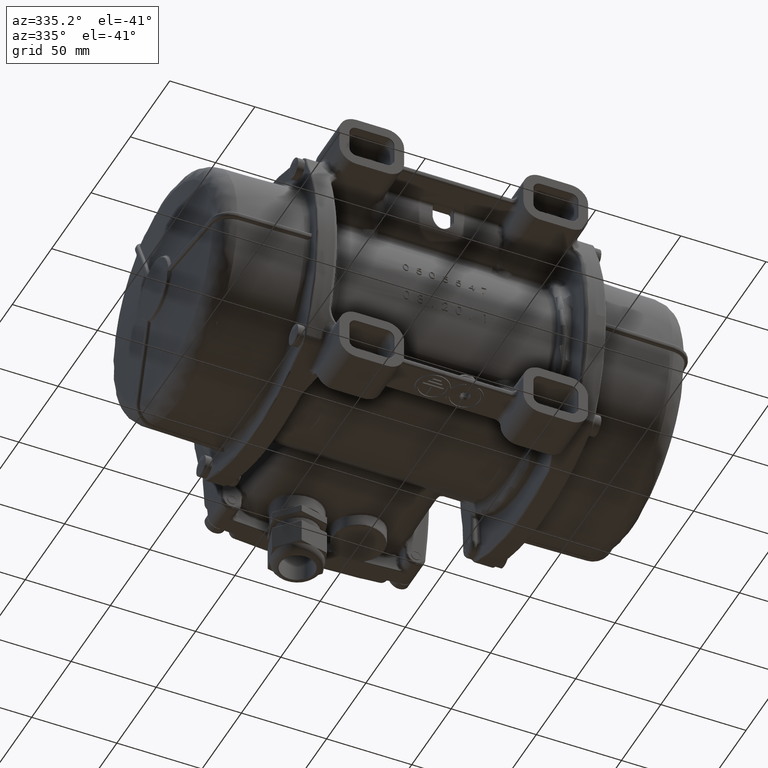
[diagram: clean part render]
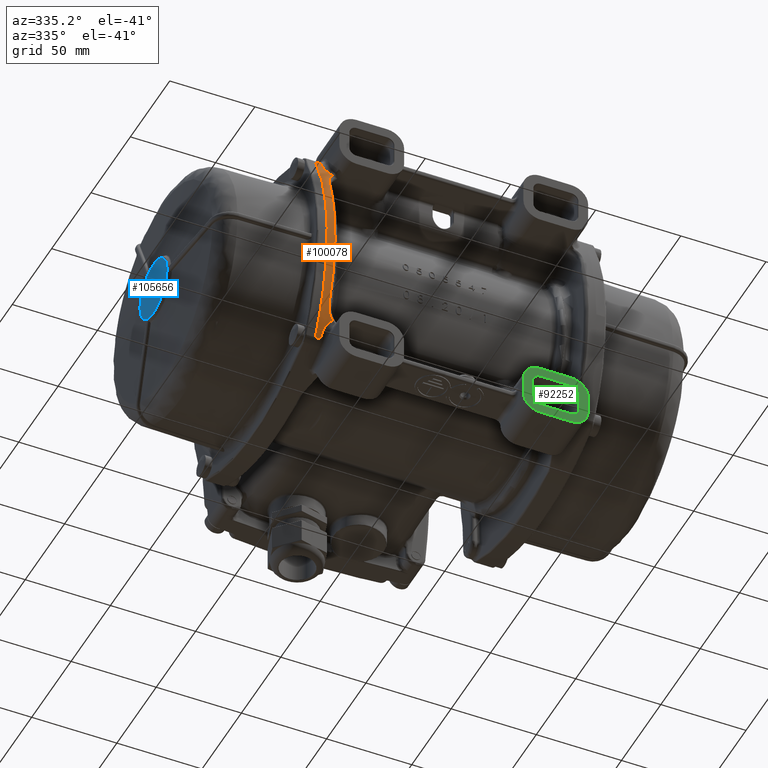
[diagram: same view with three faces highlighted in distinct colors, each labeled with its STEP entity id]
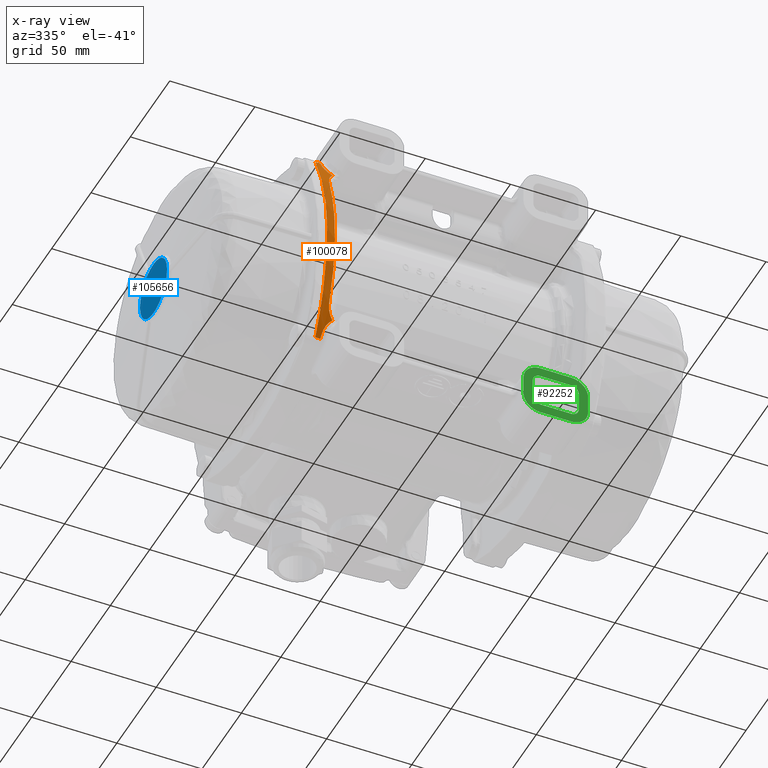
[diagram: x-ray of the same camera — body ghosted, the three highlighted faces saturated]
A machine part, auxiliary view with three faces highlighted in distinct colors.
The next image is the same camera in x-ray (body ghosted, the three faces saturated) — at least one of them is partly hidden behind the body in this view.
Their STEP definitions:

[orange] entity #100078 — the highlighted cylindrical surface (partial cylindrical patch) has radius 134.5 mm, axis along (1, 0, 0).
#2314 = CARTESIAN_POINT ( 'NONE',  ( -72.17867182666100234, -70.31149829890901515, -50.12567197677120134 ) ) ;
#2564 = B_SPLINE_CURVE_WITH_KNOTS ( 'NONE', 3,
 ( #78292, #20665, #68642, #50004 ),
 .UNSPECIFIED., .F., .F.,
 ( 4, 4 ),
 ( 0.000000000000000000, 1.000000000000000000 ),
 .UNSPECIFIED. ) ;
#2949 = CARTESIAN_POINT ( 'NONE',  ( -73.49655878046640112, -71.16040923373830651, -47.96384405093479586 ) ) ;
#5935 = CARTESIAN_POINT ( 'NONE',  ( -78.99999999999997158, -78.40063619702117137, -21.36925875850412737 ) ) ;
#5996 = B_SPLINE_CURVE_WITH_KNOTS ( 'NONE', 3,
 ( #80386, #49574, #22123, #2314, #119578, #29150, #39958, #31684, #61091, #2949, #59835, #117025, #79125, #12539, #68200 ),
 .UNSPECIFIED., .F., .F.,
 ( 4, 2, 1, 2, 2, 2, 2, 4 ),
 ( 0.000000000000000000, 0.1250000000000028033, 0.1875000000000059952, 0.2187500000000069944, 0.2500000000000079936, 0.5000000000000000000, 0.7500000000000000000, 1.000000000000000000 ),
 .UNSPECIFIED. ) ;
#6837 = CARTESIAN_POINT ( 'NONE',  ( -75.50624053571576155, -67.12112145125043128, 57.43576479338757679 ) ) ;
#7306 = VERTEX_POINT ( 'NONE', #84389 ) ;
#7460 = CARTESIAN_POINT ( 'NONE',  ( -73.29611034647282963, -69.03652540899322787, 53.19015234431395101 ) ) ;
#7964 = CARTESIAN_POINT ( 'NONE',  ( -72.04930732508104541, -69.63411141787480574, -51.78433002652697326 ) ) ;
#8077 = DIRECTION ( 'NONE',  ( 0.000000000000000000, 0.000000000000000000, -1.000000000000000000 ) ) ;
#8098 = CARTESIAN_POINT ( 'NONE',  ( -74.75683706517817484, -68.01239493244560208, 55.50844417408804787 ) ) ;
#8302 = EDGE_CURVE ( 'NONE', #10779, #7306, #47090, .T. ) ;
#8322 = ORIENTED_EDGE ( 'NONE', *, *, #123999, .T. ) ;
#9466 = CARTESIAN_POINT ( 'NONE',  ( -74.61744975115340139, -73.05067779831900054, -42.67662579578784943 ) ) ;
#9534 = EDGE_LOOP ( 'NONE', ( #20657, #8322, #48373, #24565, #19636, #115592, #48289, #125083, #28734, #72847 ) ) ;
#9613 = CARTESIAN_POINT ( 'NONE',  ( -76.00000000000000000, -64.90416094536328728, -61.91205138647870143 ) ) ;
#10113 = CARTESIAN_POINT ( 'NONE',  ( -74.54987106253666695, -75.43331197662328691, -35.55552505669981400 ) ) ;
#10779 = VERTEX_POINT ( 'NONE', #90277 ) ;
#11128 = CARTESIAN_POINT ( 'NONE',  ( -72.78582029005180232, -70.66703807928340098, 49.23094878198010349 ) ) ;
#11794 = CIRCLE ( 'NONE', #56607, 134.5000000000000000 ) ;
#12539 = CARTESIAN_POINT ( 'NONE',  ( -74.62484647881730382, -72.78989001891559951, -43.45605558218380082 ) ) ;
#12759 = VERTEX_POINT ( 'NONE', #91966 ) ;
#13019 = CARTESIAN_POINT ( 'NONE',  ( -79.00000000000000000, -77.44233739863480537, -26.65412298113845324 ) ) ;
#13135 = DIRECTION ( 'NONE',  ( -1.000000000000000000, 0.000000000000000000, 0.000000000000000000 ) ) ;
#13162 = CARTESIAN_POINT ( 'NONE',  ( -74.85246074025941709, -67.92055687707600953, -55.71060504948469116 ) ) ;
#13462 = EDGE_CURVE ( 'NONE', #40618, #20833, #103233, .T. ) ;
#14893 = CARTESIAN_POINT ( 'NONE',  ( -79.00000000000000000, -67.37217006240365436, 57.15224826160010707 ) ) ;
#15801 = CARTESIAN_POINT ( 'NONE',  ( -73.62350937175425258, -68.85707483630069703, 53.60650209693106660 ) ) ;
#16927 = CARTESIAN_POINT ( 'NONE',  ( -71.29556615089599347, -69.88378122958580718, -51.17752682049419377 ) ) ;
#19636 = ORIENTED_EDGE ( 'NONE', *, *, #71933, .F. ) ;
#20226 = CARTESIAN_POINT ( 'NONE',  ( -76.00000000000000000, -64.90416094536328728, -61.91205138647870143 ) ) ;
#20657 = ORIENTED_EDGE ( 'NONE', *, *, #96890, .T. ) ;
#20665 = CARTESIAN_POINT ( 'NONE',  ( -77.00000000000000000, -64.90418224541014069, 61.91201030730547217 ) ) ;
#20682 = CARTESIAN_POINT ( 'NONE',  ( -73.08177661221868959, -70.86297670373329538, 48.73035427445259415 ) ) ;
#20833 = VERTEX_POINT ( 'NONE', #79234 ) ;
#22123 = CARTESIAN_POINT ( 'NONE',  ( -71.81919788697639717, -70.12375773846071070, -50.59146025549149783 ) ) ;
#23236 = CARTESIAN_POINT ( 'NONE',  ( -78.99999999999997158, -73.32013352365576964, -42.20460914014253007 ) ) ;
#24565 = ORIENTED_EDGE ( 'NONE', *, *, #8302, .T. ) ;
#24616 = CARTESIAN_POINT ( 'NONE',  ( -76.00000000000000000, -65.42755169117118896, -60.89202743564130316 ) ) ;
#24657 = EDGE_CURVE ( 'NONE', #12759, #100430, #5996, .T. ) ;
#26194 = AXIS2_PLACEMENT_3D ( 'NONE', #52673, #13135, #31024 ) ;
#26647 = CARTESIAN_POINT ( 'NONE',  ( -72.79186749089575414, -69.29450638852092936, 52.58756092090276724 ) ) ;
#28071 = DIRECTION ( 'NONE',  ( -1.000000000000000000, 0.000000000000000000, 0.000000000000000000 ) ) ;
#28734 = ORIENTED_EDGE ( 'NONE', *, *, #50524, .T. ) ;
#29150 = CARTESIAN_POINT ( 'NONE',  ( -72.51875001329301540, -70.50358257312419141, -49.64451164869100808 ) ) ;
#29610 = CARTESIAN_POINT ( 'NONE',  ( -74.61744975115340139, -73.05067779831900054, -42.67662579578784943 ) ) ;
#31024 = DIRECTION ( 'NONE',  ( 0.000000000000000000, 0.000000000000000000, 1.000000000000000000 ) ) ;
#31026 = CARTESIAN_POINT ( 'NONE',  ( -79.00000000000000000, -64.90388532395670040, -61.91175210081130587 ) ) ;
#31684 = CARTESIAN_POINT ( 'NONE',  ( -72.68164344231830398, -70.60176831013190224, -49.39656852749060079 ) ) ;
#32308 = CARTESIAN_POINT ( 'NONE',  ( -76.00000000000000000, -65.42755169117118896, -60.89202743564130316 ) ) ;
#32777 = CARTESIAN_POINT ( 'NONE',  ( -79.00000000000000000, -78.40063619665815509, 21.36925876076201902 ) ) ;
#32832 = CARTESIAN_POINT ( 'NONE',  ( -74.42310318400663505, -79.72552065033630697, -8.782892520093890099 ) ) ;
#33543 = CARTESIAN_POINT ( 'NONE',  ( -74.82854168492721669, -67.94385508002190477, -55.65938144616082894 ) ) ;
#34094 = CARTESIAN_POINT ( 'NONE',  ( -76.00000000000000000, -65.42755169117118896, 60.89202743564140263 ) ) ;
#35539 = CARTESIAN_POINT ( 'NONE',  ( -73.18152678582303849, -69.09768325081466855, 53.04788673405077049 ) ) ;
#36171 = CARTESIAN_POINT ( 'NONE',  ( -75.69133913420125737, -66.77603945858558632, 58.15999464584592715 ) ) ;
#38737 = CARTESIAN_POINT ( 'NONE',  ( -74.44847218301222824, -78.88674057288041297, -17.65055946146678778 ) ) ;
#39370 = CARTESIAN_POINT ( 'NONE',  ( -74.43147721859756416, -79.46063133198266826, 14.05218832830602871 ) ) ;
#39762 = CARTESIAN_POINT ( 'NONE',  ( -73.63847167940410543, -71.29681479809620726, 47.60019211299620423 ) ) ;
#39958 = CARTESIAN_POINT ( 'NONE',  ( -72.62749137239589459, -70.56861326106279364, -49.48045353439350436 ) ) ;
#40022 = CARTESIAN_POINT ( 'NONE',  ( -74.41459027169749163, -80.00186997008398748, 6.946767905977892177 ) ) ;
#40349 = CIRCLE ( 'NONE', #26194, 134.5000000006818084 ) ;
#40546 = CARTESIAN_POINT ( 'NONE',  ( -77.00000000000000000, -64.90418224686399640, -61.91201030450168474 ) ) ;
#40618 = VERTEX_POINT ( 'NONE', #121261 ) ;
#41244 = VERTEX_POINT ( 'NONE', #118884 ) ;
#41718 = EDGE_CURVE ( 'NONE', #122575, #10779, #2564, .T. ) ;
#42995 = CARTESIAN_POINT ( 'NONE',  ( -74.49917933442431206, -77.17442871948185257, -28.36655692653206984 ) ) ;
#44669 = B_SPLINE_CURVE_WITH_KNOTS ( 'NONE', 3,
 ( #9466, #10113, #42995, #38737, #68268, #32832, #88163, #71918, #87512, #40022, #39370, #82150, #78581, #107479 ),
 .UNSPECIFIED., .F., .F.,
 ( 4, 2, 2, 2, 2, 2, 4 ),
 ( 0.000000000000000000, 0.2500000000000000555, 0.3750000000000001665, 0.4375000000000001665, 0.5000000000000001110, 0.7500000000000002220, 1.000000000000000000 ),
 .UNSPECIFIED. ) ;
#45122 = CARTESIAN_POINT ( 'NONE',  ( -74.70489024613222284, -68.06019300195106325, 55.40282727054707834 ) ) ;
#45769 = CARTESIAN_POINT ( 'NONE',  ( -75.61031689308975956, -66.93680522864066518, 57.82376896512506192 ) ) ;
#47090 = B_SPLINE_CURVE_WITH_KNOTS ( 'NONE', 3,
 ( #102680, #14893, #53806, #73744, #112906, #81470, #32777, #64103, #54443, #71863, #93673, #5935, #13019, #91127, #23236, #101432, #101420, #80224 ),
 .UNSPECIFIED., .F., .F.,
 ( 4, 2, 2, 2, 2, 2, 2, 2, 4 ),
 ( 0.000000000000000000, 0.1250000000000000555, 0.2500000000000001110, 0.3750000000000001665, 0.5000000000000002220, 0.6250000000000002220, 0.7500000000000003331, 0.8750000000000001110, 1.000000000000000000 ),
 .UNSPECIFIED. ) ;
#48289 = ORIENTED_EDGE ( 'NONE', *, *, #80473, .T. ) ;
#48373 = ORIENTED_EDGE ( 'NONE', *, *, #41718, .T. ) ;
#48893 = FACE_OUTER_BOUND ( 'NONE', #9534, .T. ) ;
#49574 = CARTESIAN_POINT ( 'NONE',  ( -71.56477087724188380, -70.00196378112400453, -50.89029403506860660 ) ) ;
#50004 = CARTESIAN_POINT ( 'NONE',  ( -79.00000000000000000, -64.90388532329080817, 61.91175210304029974 ) ) ;
#50018 = CARTESIAN_POINT ( 'NONE',  ( -72.31324468708510267, -70.37095293032000143, 49.98225235741700345 ) ) ;
#50524 = EDGE_CURVE ( 'NONE', #100430, #40618, #44669, .T. ) ;
#52086 = CARTESIAN_POINT ( 'NONE',  ( -74.37673347733857554, -68.34480803078055544, -54.77047195688538039 ) ) ;
#52673 = CARTESIAN_POINT ( 'NONE',  ( -76.00000000000000000, 54.49913839457479980, -3.115493973915305435E-10 ) ) ;
#52699 = CARTESIAN_POINT ( 'NONE',  ( -76.00000000000000000, -65.65800691315351401, -60.43814647373058335 ) ) ;
#53326 = CARTESIAN_POINT ( 'NONE',  ( -74.90046285349879440, -67.87288586074373598, -55.81523972034144521 ) ) ;
#53806 = CARTESIAN_POINT ( 'NONE',  ( -79.00000000000000000, -69.55517127440367631, 52.24484241460969969 ) ) ;
#54443 = CARTESIAN_POINT ( 'NONE',  ( -79.00000000000000000, -80.00086160598608842, 5.361464933766030505 ) ) ;
#54965 = VERTEX_POINT ( 'NONE', #24616 ) ;
#56607 = AXIS2_PLACEMENT_3D ( 'NONE', #99194, #28071, #58723 ) ;
#57254 = DIRECTION ( 'NONE',  ( 1.000000000000000000, 0.000000000000000000, 0.000000000000000000 ) ) ;
#58723 = DIRECTION ( 'NONE',  ( 0.000000000000000000, 0.000000000000000000, -1.000000000000000000 ) ) ;
#59642 = CARTESIAN_POINT ( 'NONE',  ( -72.93551823726329530, -70.76458576109828869, 48.98221556410410216 ) ) ;
#59835 = CARTESIAN_POINT ( 'NONE',  ( -74.06364419193660353, -71.70551300613449541, -46.51062471221820260 ) ) ;
#61091 = CARTESIAN_POINT ( 'NONE',  ( -73.14800964816019757, -70.89395700953438961, -48.65514788578899896 ) ) ;
#61709 = CARTESIAN_POINT ( 'NONE',  ( -75.59917131901259779, -66.97220117540651074, -57.75127541777933260 ) ) ;
#62166 = CARTESIAN_POINT ( 'NONE',  ( -74.61744975115350087, -73.05067779832178587, 42.67662579577964976 ) ) ;
#63556 = B_SPLINE_CURVE_WITH_KNOTS ( 'NONE', 3,
 ( #20226, #40546, #126691, #31026 ),
 .UNSPECIFIED., .F., .F.,
 ( 4, 4 ),
 ( 0.000000000000000000, 1.000000000000000000 ),
 .UNSPECIFIED. ) ;
#64103 = CARTESIAN_POINT ( 'NONE',  ( -79.00000000000001421, -79.67990047933841424, 10.72291160363511153 ) ) ;
#64254 = CARTESIAN_POINT ( 'NONE',  ( -75.96249543199314758, -65.99698262211677502, -59.76096068377848525 ) ) ;
#66294 = CARTESIAN_POINT ( 'NONE',  ( -71.29556615089860827, -69.88378122958708616, 51.17752682049119528 ) ) ;
#66781 = CARTESIAN_POINT ( 'NONE',  ( -73.60309441442188927, -68.86261785494419030, -53.59232917000819185 ) ) ;
#68200 = CARTESIAN_POINT ( 'NONE',  ( -74.61744975115340139, -73.05067779831900054, -42.67662579578784943 ) ) ;
#68268 = CARTESIAN_POINT ( 'NONE',  ( -74.43579153933431769, -79.30791918362547221, -14.08951840000017519 ) ) ;
#68642 = CARTESIAN_POINT ( 'NONE',  ( -78.00000000000000000, -64.90420354543581993, 61.91196922812145687 ) ) ;
#69568 = CARTESIAN_POINT ( 'NONE',  ( -76.00000000000000000, -64.90416094536328728, 61.91205138647870143 ) ) ;
#71174 = CARTESIAN_POINT ( 'NONE',  ( -74.27591226732539553, -71.97837820352569338, 45.76405822191870243 ) ) ;
#71379 = CARTESIAN_POINT ( 'NONE',  ( -75.86873401197604494, -66.32614984907488065, -59.08943513131807634 ) ) ;
#71863 = CARTESIAN_POINT ( 'NONE',  ( -79.00000000000000000, -80.00086160607715158, -5.361464931480945495 ) ) ;
#71918 = CARTESIAN_POINT ( 'NONE',  ( -74.41569200383644045, -79.96658465200935950, -3.508138250337270225 ) ) ;
#71933 = EDGE_CURVE ( 'NONE', #105557, #7306, #63556, .T. ) ;
#72847 = ORIENTED_EDGE ( 'NONE', *, *, #13462, .T. ) ;
#73744 = CARTESIAN_POINT ( 'NONE',  ( -79.00000000000000000, -73.32013352293876096, 42.20460914231411920 ) ) ;
#74239 = EDGE_CURVE ( 'NONE', #105557, #54965, #11794, .T. ) ;
#78292 = CARTESIAN_POINT ( 'NONE',  ( -76.00000000000000000, -64.90416094536328728, 61.91205138647870143 ) ) ;
#78581 = CARTESIAN_POINT ( 'NONE',  ( -74.54980934212962040, -75.43548806429780029, 35.54902127206830187 ) ) ;
#78932 = CARTESIAN_POINT ( 'NONE',  ( -73.40146061098089092, -71.09470987919540619, 48.13184375562089912 ) ) ;
#79125 = CARTESIAN_POINT ( 'NONE',  ( -74.55795918115241250, -72.52307464101539836, -44.22975690860759812 ) ) ;
#79234 = CARTESIAN_POINT ( 'NONE',  ( -71.29556615089860827, -69.88378122958708616, 51.17752682049119528 ) ) ;
#80224 = CARTESIAN_POINT ( 'NONE',  ( -79.00000000000000000, -64.90388532395670040, -61.91175210081130587 ) ) ;
#80386 = CARTESIAN_POINT ( 'NONE',  ( -71.29556615089599347, -69.88378122958580718, -51.17752682049419377 ) ) ;
#80473 = EDGE_CURVE ( 'NONE', #54965, #12759, #105217, .T. ) ;
#81470 = CARTESIAN_POINT ( 'NONE',  ( -79.00000000000000000, -77.44233739818197648, 26.65412298338007346 ) ) ;
#82150 = CARTESIAN_POINT ( 'NONE',  ( -74.49908675381368539, -77.17762831748602537, 28.35335977024998044 ) ) ;
#82881 = CARTESIAN_POINT ( 'NONE',  ( -75.79372487596238273, -66.54344293872753724, -58.64303136324411270 ) ) ;
#83638 = CARTESIAN_POINT ( 'NONE',  ( -71.67580107933012812, -69.75783200946644058, 51.48363694196862639 ) ) ;
#84256 = CARTESIAN_POINT ( 'NONE',  ( -73.25748491593569156, -69.05736667516013938, 53.14172242921194567 ) ) ;
#84389 = CARTESIAN_POINT ( 'NONE',  ( -79.00000000000000000, -64.90388532395670040, -61.91175210081130587 ) ) ;
#84886 = CARTESIAN_POINT ( 'NONE',  ( -75.65147929144028183, -66.85687520499524794, 57.99113556897809474 ) ) ;
#85510 = CARTESIAN_POINT ( 'NONE',  ( -74.43608510536324729, -68.29285949278906287, 54.88591396612645923 ) ) ;
#87512 = CARTESIAN_POINT ( 'NONE',  ( -74.41462886395720489, -80.00060774876341441, -1.761062107394971044 ) ) ;
#88163 = CARTESIAN_POINT ( 'NONE',  ( -74.41992916726219676, -79.82904116337795131, -7.019820871673982943 ) ) ;
#88535 = CARTESIAN_POINT ( 'NONE',  ( -74.06315543270588364, -71.70505606409700761, 46.51184597463090142 ) ) ;
#89183 = CARTESIAN_POINT ( 'NONE',  ( -71.83399610747790121, -70.12015514676539851, 50.60303929561329994 ) ) ;
#90277 = CARTESIAN_POINT ( 'NONE',  ( -79.00000000000000000, -64.90388532329080817, 61.91175210304029974 ) ) ;
#91127 = CARTESIAN_POINT ( 'NONE',  ( -78.99999999999998579, -74.90208173551714310, -37.07181591484523153 ) ) ;
#91922 = CARTESIAN_POINT ( 'NONE',  ( -75.75035952441163545, -66.65018300320966205, -58.42220008090161798 ) ) ;
#91966 = CARTESIAN_POINT ( 'NONE',  ( -71.29556615089599347, -69.88378122958580718, -51.17752682049419377 ) ) ;
#93119 = CARTESIAN_POINT ( 'NONE',  ( -75.99999999999998579, -65.88565501351273213, 59.98979413057517718 ) ) ;
#93337 = CARTESIAN_POINT ( 'NONE',  ( -75.26596477607552060, -67.48109640129938214, 56.66988204628020753 ) ) ;
#93673 = CARTESIAN_POINT ( 'NONE',  ( -79.00000000000000000, -79.67990047952059740, -10.72291160135549148 ) ) ;
#93830 = CARTESIAN_POINT ( 'NONE',  ( -72.72293486870506740, -69.34918719923861374, -52.46438906584316442 ) ) ;
#93974 = CARTESIAN_POINT ( 'NONE',  ( -74.59906917288115835, -68.15388271729331393, 55.19510298989651176 ) ) ;
#94610 = CARTESIAN_POINT ( 'NONE',  ( -74.26034366492162064, -68.42722034523795571, 54.58394663669612612 ) ) ;
#95855 = CYLINDRICAL_SURFACE ( 'NONE', #121893, 134.5000000000000000 ) ;
#95875 = CARTESIAN_POINT ( 'NONE',  ( -72.03566203230008114, -69.62289180759468366, 51.80839952993500219 ) ) ;
#96890 = EDGE_CURVE ( 'NONE', #20833, #41244, #118687, .T. ) ;
#98846 = CARTESIAN_POINT ( 'NONE',  ( -72.83595688797849732, -70.69920292346959911, 49.14909319740590377 ) ) ;
#99194 = CARTESIAN_POINT ( 'NONE',  ( -76.00000000000000000, 54.49913839396840132, 0.000000000000000000 ) ) ;
#100078 = ADVANCED_FACE ( 'NONE', ( #48893 ), #95855, .T. ) ;
#100430 = VERTEX_POINT ( 'NONE', #29610 ) ;
#100942 = CARTESIAN_POINT ( 'NONE',  ( -75.12869131220915619, -67.63154137562457890, -56.34218893234761083 ) ) ;
#101387 = CARTESIAN_POINT ( 'NONE',  ( -74.55762967500469074, -72.52247317171379848, 44.23145289118934897 ) ) ;
#101420 = CARTESIAN_POINT ( 'NONE',  ( -79.00000000000002842, -67.37217006337466785, -57.15224825952959975 ) ) ;
#101432 = CARTESIAN_POINT ( 'NONE',  ( -79.00000000000001421, -69.55517127529130050, -52.24484241250208072 ) ) ;
#102680 = CARTESIAN_POINT ( 'NONE',  ( -79.00000000000000000, -64.90388532329080817, 61.91175210304029974 ) ) ;
#103233 = B_SPLINE_CURVE_WITH_KNOTS ( 'NONE', 3,
 ( #62166, #118121, #101387, #71174, #88535, #39762, #78932, #20682, #59642, #98846, #11128, #50018, #89183, #121929 ),
 .UNSPECIFIED., .F., .F.,
 ( 4, 2, 2, 1, 1, 2, 2, 4 ),
 ( 0.000000000000000000, 0.2500000000000000000, 0.5000000000000000000, 0.6250000000000000000, 0.6875000000000000000, 0.7187500000000000000, 0.7500000000000000000, 1.000000000000000000 ),
 .UNSPECIFIED. ) ;
#104220 = CARTESIAN_POINT ( 'NONE',  ( -75.00494604799753517, -67.77511574332936561, 56.03095159853812390 ) ) ;
#104705 = CARTESIAN_POINT ( 'NONE',  ( -73.39063802090085176, -68.98487899677917312, -53.31001703053694740 ) ) ;
#105217 = B_SPLINE_CURVE_WITH_KNOTS ( 'NONE', 3,
 ( #32308, #52699, #64254, #71379, #82881, #91922, #61709, #121482, #100942, #120850, #53326, #13162, #33543, #112437, #52086, #105347, #125939, #66781, #105978, #104705, #93830, #7964, #16927 ),
 .UNSPECIFIED., .F., .F.,
 ( 4, 1, 2, 2, 1, 1, 1, 2, 2, 2, 1, 2, 2, 4 ),
 ( 0.000000000000000000, 0.1249999999999947820, 0.1874999999999915901, 0.2499999999999883982, 0.3749999999999835132, 0.4374999999999823475, 0.4687499999999817368, 0.4843749999999815703, 0.4999999999999813483, 0.6249999999999834577, 0.6874999999999835687, 0.7187499999999846789, 0.7499999999999856781, 1.000000000000000000 ),
 .UNSPECIFIED. ) ;
#105347 = CARTESIAN_POINT ( 'NONE',  ( -74.00501606701314472, -68.60896379161221148, -54.17280331643630831 ) ) ;
#105497 = CARTESIAN_POINT ( 'NONE',  ( -73.06663456055436257, -69.15769547209943369, 52.90798896102552362 ) ) ;
#105557 = VERTEX_POINT ( 'NONE', #9613 ) ;
#105978 = CARTESIAN_POINT ( 'NONE',  ( -73.46192904397106815, -68.94471557052217747, -53.40295468488753983 ) ) ;
#106716 = CARTESIAN_POINT ( 'NONE',  ( -90.00000000000000000, 54.49913839396840132, 0.000000000000000000 ) ) ;
#107479 = CARTESIAN_POINT ( 'NONE',  ( -74.61744975115350087, -73.05067779832178587, 42.67662579577964976 ) ) ;
#112437 = CARTESIAN_POINT ( 'NONE',  ( -74.60153232821016900, -68.16062062239545583, -55.18197825252886446 ) ) ;
#112906 = CARTESIAN_POINT ( 'NONE',  ( -79.00000000000000000, -74.90208173488731802, 37.07181591704370760 ) ) ;
#112980 = CARTESIAN_POINT ( 'NONE',  ( -75.90122852294439326, -66.32603173001373875, 59.09725712844144141 ) ) ;
#113836 = CARTESIAN_POINT ( 'NONE',  ( -73.89185095347323795, -68.68993653127260757, 53.98971598679077033 ) ) ;
#114478 = CARTESIAN_POINT ( 'NONE',  ( -72.54489249856256095, -69.40632790729087276, 52.32322697875464002 ) ) ;
#115592 = ORIENTED_EDGE ( 'NONE', *, *, #74239, .T. ) ;
#117025 = CARTESIAN_POINT ( 'NONE',  ( -74.27561653516561080, -71.97784195943000896, -45.76557047809429690 ) ) ;
#118121 = CARTESIAN_POINT ( 'NONE',  ( -74.62484560005070477, -72.78992100177909208, 43.45596298211359709 ) ) ;
#118687 = B_SPLINE_CURVE_WITH_KNOTS ( 'NONE', 3,
 ( #66294, #83638, #95875, #114478, #26647, #105497, #35539, #84256, #7460, #15801, #113836, #94610, #85510, #93974, #45122, #8098, #104220, #93337, #6837, #45769, #84886, #124151, #36171, #112980, #93119, #34094 ),
 .UNSPECIFIED., .F., .F.,
 ( 4, 2, 1, 1, 2, 2, 2, 1, 2, 2, 1, 1, 1, 2, 2, 4 ),
 ( 0.000000000000000000, 0.1250000000000101585, 0.1875000000000152378, 0.2187500000000167644, 0.2343750000000171252, 0.2500000000000174860, 0.3750000000000227596, 0.4375000000000254241, 0.4687500000000268119, 0.5000000000000281997, 0.6250000000000295319, 0.6875000000000297540, 0.7187500000000294209, 0.7343750000000289768, 0.7500000000000284217, 1.000000000000000000 ),
 .UNSPECIFIED. ) ;
#118884 = CARTESIAN_POINT ( 'NONE',  ( -76.00000000000000000, -65.42755169117118896, 60.89202743564140263 ) ) ;
#119578 = CARTESIAN_POINT ( 'NONE',  ( -72.35286715277399594, -70.40663052836249847, -49.88839334232449829 ) ) ;
#120850 = CARTESIAN_POINT ( 'NONE',  ( -74.97132581940755358, -67.80109107462563145, -55.97255771123280255 ) ) ;
#121261 = CARTESIAN_POINT ( 'NONE',  ( -74.61744975115350087, -73.05067779832178587, 42.67662579577964976 ) ) ;
#121482 = CARTESIAN_POINT ( 'NONE',  ( -75.41149658720361515, -67.28424168678652961, -57.09162641438783226 ) ) ;
#121893 = AXIS2_PLACEMENT_3D ( 'NONE', #106716, #57254, #8077 ) ;
#121929 = CARTESIAN_POINT ( 'NONE',  ( -71.29556615089860827, -69.88378122958708616, 51.17752682049119528 ) ) ;
#122575 = VERTEX_POINT ( 'NONE', #69568 ) ;
#123999 = EDGE_CURVE ( 'NONE', #41244, #122575, #40349, .T. ) ;
#124151 = CARTESIAN_POINT ( 'NONE',  ( -75.67815605593834505, -66.80337912902065511, 58.10295245335112213 ) ) ;
#125083 = ORIENTED_EDGE ( 'NONE', *, *, #24657, .T. ) ;
#125939 = CARTESIAN_POINT ( 'NONE',  ( -73.81052757834584099, -68.73800976665721407, -53.87886620191394371 ) ) ;
#126691 = CARTESIAN_POINT ( 'NONE',  ( -78.00000000000000000, -64.90420354795735136, -61.91196922231345923 ) ) ;

[blue] entity #105656 — the highlighted planar face has unit normal (-1, -0, 0).
#785 = EDGE_LOOP ( 'NONE', ( #97798, #46889, #123992, #86494 ) ) ;
#959 = CARTESIAN_POINT ( 'NONE',  ( -144.0000000000000000, -7.062527219839518902E-14, 17.17264973081044843 ) ) ;
#1510 = CARTESIAN_POINT ( 'NONE',  ( -143.9999998732270114, -17.06298901166600146, -1.942478884625384872 ) ) ;
#1695 = CARTESIAN_POINT ( 'NONE',  ( -144.0000000000000000, -10.31859308111550000, -13.72685702967135946 ) ) ;
#2313 = CARTESIAN_POINT ( 'NONE',  ( -143.9999999550322229, -13.76021250771407978, -10.27472347143609888 ) ) ;
#2757 = CARTESIAN_POINT ( 'NONE',  ( -144.0000000058950036, -14.45349181618393963, -9.275898708688499639 ) ) ;
#3049 = CARTESIAN_POINT ( 'NONE',  ( -144.0000000000000000, -15.13390127938034979, 8.115744781365430427 ) ) ;
#3389 = CARTESIAN_POINT ( 'NONE',  ( -143.9999999009866087, -16.08030335569249658, -6.028312717421449918 ) ) ;
#3563 = CARTESIAN_POINT ( 'NONE',  ( -143.9999999747780066, -13.58246868888923942, -10.50830465830371985 ) ) ;
#4014 = CARTESIAN_POINT ( 'NONE',  ( -144.0000000000000000, -14.99891765809560162, -8.368594843564899577 ) ) ;
#4186 = DIRECTION ( 'NONE',  ( 0.000000000000000000, -1.000000000000000000, 0.000000000000000000 ) ) ;
#4194 = CARTESIAN_POINT ( 'NONE',  ( -143.9999999999984084, -10.35605334566556124, -13.69863517788122032 ) ) ;
#4632 = CARTESIAN_POINT ( 'NONE',  ( -143.9999999993040092, -15.19280285249479867, -8.005025180819110631 ) ) ;
#5264 = CARTESIAN_POINT ( 'NONE',  ( -143.9999999533557968, -16.29669079053789815, -5.419435711420390156 ) ) ;
#5389 = CARTESIAN_POINT ( 'NONE',  ( -143.9999998882524039, -16.98730248143199972, 2.521030028089314978 ) ) ;
#6030 = CARTESIAN_POINT ( 'NONE',  ( -143.9999998669261743, -17.03832551123075234, 2.147828119476065112 ) ) ;
#6650 = CARTESIAN_POINT ( 'NONE',  ( -143.9999999681990062, -16.86227207087330271, 3.251620656054110103 ) ) ;
#7259 = CARTESIAN_POINT ( 'NONE',  ( -143.9999999633880066, -16.87167604104809726, 3.202462499454854949 ) ) ;
#8532 = CARTESIAN_POINT ( 'NONE',  ( -143.9999999999600107, -17.17264995336424960, 0.01946068968973140023 ) ) ;
#9174 = CARTESIAN_POINT ( 'NONE',  ( -143.9999998668325816, -17.03920637882719902, 2.140839441797520060 ) ) ;
#9538 = EDGE_CURVE ( 'NONE', #10618, #17761, #22898, .T. ) ;
#10143 = CARTESIAN_POINT ( 'NONE',  ( -144.0000000000000000, -1.841769898563439867, 17.17264973081044843 ) ) ;
#10156 = EDGE_CURVE ( 'NONE', #17761, #99170, #95291, .T. ) ;
#10489 = CARTESIAN_POINT ( 'NONE',  ( -143.9999999680221947, -17.14366324860609581, -1.002015870048821977 ) ) ;
#10618 = VERTEX_POINT ( 'NONE', #71017 ) ;
#11302 = CARTESIAN_POINT ( 'NONE',  ( -143.9999999996188080, -11.46516768261403918, -12.78823606469910068 ) ) ;
#11743 = CARTESIAN_POINT ( 'NONE',  ( -143.9999999648352116, -17.14167408388249569, -1.035461733239773974 ) ) ;
#11932 = CARTESIAN_POINT ( 'NONE',  ( -144.0000000000000000, -10.33358273157872098, -13.71557565570332038 ) ) ;
#12356 = CARTESIAN_POINT ( 'NONE',  ( -143.9999999716002037, -16.36456315112519988, -5.206647644202019976 ) ) ;
#12691 = AXIS2_PLACEMENT_3D ( 'NONE', #113698, #13153, #4186 ) ;
#12980 = CARTESIAN_POINT ( 'NONE',  ( -143.9999998670990067, -17.04189845525879932, -2.119298663711189690 ) ) ;
#13153 = DIRECTION ( 'NONE',  ( 1.000000000000000000, 0.000000000000000000, -9.796188227125820516E-31 ) ) ;
#13164 = CARTESIAN_POINT ( 'NONE',  ( -143.9999999999934062, -10.40838753627794055, -13.65897863729430028 ) ) ;
#13262 = CARTESIAN_POINT ( 'NONE',  ( -143.9999999623794054, -16.87356429860719942, 3.192518361635815261 ) ) ;
#13603 = CARTESIAN_POINT ( 'NONE',  ( -143.9999999345908179, -14.13721869236646000, -9.749429171741441635 ) ) ;
#13786 = CARTESIAN_POINT ( 'NONE',  ( -143.9999999963270056, -13.27329247240562005, -10.89721936848562045 ) ) ;
#14240 = CARTESIAN_POINT ( 'NONE',  ( -144.0000000000000000, -16.64441814284800003, -4.226494388651070189 ) ) ;
#14858 = CARTESIAN_POINT ( 'NONE',  ( -143.9999998968904151, -16.03737546722934937, -6.141551157468359889 ) ) ;
#15601 = CARTESIAN_POINT ( 'NONE',  ( -143.9999998698623926, -17.02400325640514822, 2.259042825245110020 ) ) ;
#16229 = CARTESIAN_POINT ( 'NONE',  ( -144.0000000000000000, -9.361084712920030526, 14.39871499796960030 ) ) ;
#16866 = CARTESIAN_POINT ( 'NONE',  ( -144.0000000000000000, -15.47731337494469983, 7.471918052317469972 ) ) ;
#17761 = VERTEX_POINT ( 'NONE', #959 ) ;
#19528 = DIRECTION ( 'NONE',  ( -1.000000000000000000, -3.061616997868369829E-16, 3.494524795309275365E-31 ) ) ;
#21498 = CARTESIAN_POINT ( 'NONE',  ( -143.9999999997210125, -13.07067640997255964, -11.13829791056864060 ) ) ;
#21930 = CARTESIAN_POINT ( 'NONE',  ( -143.9999999071510217, -16.12118778157095278, -5.918455373988920520 ) ) ;
#22122 = CARTESIAN_POINT ( 'NONE',  ( -143.9999999996188080, -12.12505263056312188, -12.17548578198457854 ) ) ;
#22560 = CARTESIAN_POINT ( 'NONE',  ( -143.9999998936831958, -15.89037837494629990, -6.521562846330589913 ) ) ;
#22745 = CARTESIAN_POINT ( 'NONE',  ( -143.9999999759870093, -13.57019523777072045, -10.52413788514955861 ) ) ;
#22846 = CARTESIAN_POINT ( 'NONE',  ( -143.9999999989006199, -16.73900908128630149, 3.836042413819999997 ) ) ;
#22898 = CIRCLE ( 'NONE', #12691, 17.17264973081034896 ) ;
#23194 = CARTESIAN_POINT ( 'NONE',  ( -143.9999999445851984, -14.15707230576248143, -9.720536196119690331 ) ) ;
#23825 = CARTESIAN_POINT ( 'NONE',  ( -143.9999999222883957, -14.05994760744346195, -9.861935282870579300 ) ) ;
#24435 = CARTESIAN_POINT ( 'NONE',  ( -143.9999999975580067, -16.68207077597420351, -4.076083498136570782 ) ) ;
#24698 = AXIS2_PLACEMENT_3D ( 'NONE', #93415, #19528, #27824 ) ;
#25167 = CARTESIAN_POINT ( 'NONE',  ( -144.0000000000000000, -8.777043000208379908, 14.76737695808069795 ) ) ;
#25801 = CARTESIAN_POINT ( 'NONE',  ( -144.0000000000000000, -12.22384693630746000, 12.12617989541971930 ) ) ;
#26444 = CARTESIAN_POINT ( 'NONE',  ( -144.0000000000000000, -13.44574847665129802, 10.70062802736589980 ) ) ;
#27055 = CARTESIAN_POINT ( 'NONE',  ( -144.0000000000000000, -9.978868439426870296, 13.97659732359210061 ) ) ;
#27824 = DIRECTION ( 'NONE',  ( -3.061616997868369829E-16, 1.000000000000000000, 0.000000000000000000 ) ) ;
#29589 = CARTESIAN_POINT ( 'NONE',  ( -143.9999998638861882, -17.08472858569895081, 1.776661728949660013 ) ) ;
#30249 = CARTESIAN_POINT ( 'NONE',  ( -143.9999999738419945, -17.14739563881484941, -0.9364890728704289291 ) ) ;
#31051 = CARTESIAN_POINT ( 'NONE',  ( -143.9999999996902034, -11.23985112099011907, -12.98671927463002085 ) ) ;
#31264 = FACE_OUTER_BOUND ( 'NONE', #785, .T. ) ;
#31507 = CARTESIAN_POINT ( 'NONE',  ( -143.9999998680441990, -17.04838453953329847, -2.066574789827464897 ) ) ;
#31683 = CARTESIAN_POINT ( 'NONE',  ( -144.0000000000000000, -12.93983949490612062, -11.28983882045330134 ) ) ;
#32114 = CARTESIAN_POINT ( 'NONE',  ( -143.9999999708430209, -16.36169319396519839, -5.215669760367579677 ) ) ;
#32397 = CARTESIAN_POINT ( 'NONE',  ( -144.0000000000000000, -7.154240789532740230, 15.63856664123364837 ) ) ;
#32741 = CARTESIAN_POINT ( 'NONE',  ( -143.9999999743636181, -15.42875523354490142, -7.544121960279209560 ) ) ;
#32918 = CARTESIAN_POINT ( 'NONE',  ( -143.9999999964119866, -7.177760217995380110, -15.70906477314979988 ) ) ;
#33354 = CARTESIAN_POINT ( 'NONE',  ( -143.9999998641555976, -16.99637623918179941, -2.483476334458199819 ) ) ;
#33545 = CARTESIAN_POINT ( 'NONE',  ( -144.0000000000000000, -8.830207656151689122, -14.84322698212692160 ) ) ;
#33996 = CARTESIAN_POINT ( 'NONE',  ( -144.0000000007792096, -16.60807981037574876, -4.370486374587144951 ) ) ;
#34717 = CARTESIAN_POINT ( 'NONE',  ( -143.9999998808173984, -16.99950665255440185, 2.437199751926350189 ) ) ;
#35343 = CARTESIAN_POINT ( 'NONE',  ( -143.9999999398970090, -16.91453134018869875, 2.975737467271124981 ) ) ;
#35968 = CARTESIAN_POINT ( 'NONE',  ( -143.9999999929760008, -16.60665897599920271, 4.373374084342694701 ) ) ;
#36577 = CARTESIAN_POINT ( 'NONE',  ( -143.9999999972794171, -16.76298597553410374, 3.731087922160480019 ) ) ;
#37534 = DIRECTION ( 'NONE',  ( 0.000000000000000000, -1.000000000000000000, 0.000000000000000000 ) ) ;
#39029 = EDGE_CURVE ( 'NONE', #99170, #62200, #74477, .T. ) ;
#39767 = CARTESIAN_POINT ( 'NONE',  ( -144.0000000000000000, -17.17262774033234862, -0.04405850895820414420 ) ) ;
#40395 = CARTESIAN_POINT ( 'NONE',  ( -143.9999998701246113, -17.05625733181394921, -2.001006985879529854 ) ) ;
#41195 = CARTESIAN_POINT ( 'NONE',  ( -144.0000000000000000, -10.30934503791553958, -13.73380310945801952 ) ) ;
#41633 = CARTESIAN_POINT ( 'NONE',  ( -143.9999999989096011, -16.53958688144294698, -4.620735236968229742 ) ) ;
#41820 = CARTESIAN_POINT ( 'NONE',  ( -143.9999999999486135, -13.01296902956035773, -11.20552508987186080 ) ) ;
#41907 = CARTESIAN_POINT ( 'NONE',  ( -143.9999999141520277, -16.48717611555305140, 4.810400060200829664 ) ) ;
#42258 = CARTESIAN_POINT ( 'NONE',  ( -143.9999998964452175, -16.02773654121554969, -6.166625473014700098 ) ) ;
#42455 = CARTESIAN_POINT ( 'NONE',  ( -144.0000000000000000, -12.94366096092296026, -11.28545789593569992 ) ) ;
#42904 = CARTESIAN_POINT ( 'NONE',  ( -143.9999998671927983, -17.04276464261650048, -2.112310919895219907 ) ) ;
#43537 = CARTESIAN_POINT ( 'NONE',  ( -143.9999999673150057, -16.78841958345804741, -3.621266468912134773 ) ) ;
#44173 = CARTESIAN_POINT ( 'NONE',  ( -143.9999999952760277, -14.58342321795541885, -9.068996348055259560 ) ) ;
#44302 = CARTESIAN_POINT ( 'NONE',  ( -143.9999999981696135, -16.62559921996145107, 4.300279143967360440 ) ) ;
#44909 = CARTESIAN_POINT ( 'NONE',  ( -143.9999999999577938, -16.64161155819325089, 4.237569680787735216 ) ) ;
#45563 = CARTESIAN_POINT ( 'NONE',  ( -144.0000000000000000, -15.11537598698305018, 8.150195707001579137 ) ) ;
#45632 = CARTESIAN_POINT ( 'NONE',  ( -144.0000000000000000, -1.773919104982199972E-13, -17.17264973081029922 ) ) ;
#46198 = CARTESIAN_POINT ( 'NONE',  ( -143.9999999616834145, -16.87484538686830149, 3.185751189685004814 ) ) ;
#46889 = ORIENTED_EDGE ( 'NONE', *, *, #39029, .F. ) ;
#48103 = CARTESIAN_POINT ( 'NONE',  ( -143.9999999672511990, -17.16324176312089733, 0.6226910897730879579 ) ) ;
#48130 = CARTESIAN_POINT ( 'NONE',  ( -143.9999999887200204, -17.15811812536410130, -0.7126375237274960028 ) ) ;
#49043 = CARTESIAN_POINT ( 'NONE',  ( -144.0000000000000000, -3.683212441523439740, 16.87382473676214900 ) ) ;
#50211 = CARTESIAN_POINT ( 'NONE',  ( -143.9999999999752163, -10.51266526390102030, -13.57915179732294142 ) ) ;
#50837 = CARTESIAN_POINT ( 'NONE',  ( -143.9999999964119866, -3.683230445134340059, -16.87390800265309920 ) ) ;
#51265 = CARTESIAN_POINT ( 'NONE',  ( -143.9999999998552198, -15.17262435295990031, -8.043165039686799744 ) ) ;
#51892 = CARTESIAN_POINT ( 'NONE',  ( -143.9999999913789850, -16.46138241238660171, -4.891922844854040164 ) ) ;
#52183 = CARTESIAN_POINT ( 'NONE',  ( -143.9999999152491910, -16.94676791437230179, 2.784369478000515041 ) ) ;
#52518 = CARTESIAN_POINT ( 'NONE',  ( -143.9999999727194222, -16.36884783680335076, -5.193158778393419439 ) ) ;
#52700 = CARTESIAN_POINT ( 'NONE',  ( -144.0000000000000000, -12.94922376544871945, -11.27907661869524070 ) ) ;
#53143 = CARTESIAN_POINT ( 'NONE',  ( -143.9999998985410059, -16.06019655493039977, -6.081763085749570585 ) ) ;
#53772 = CARTESIAN_POINT ( 'NONE',  ( -143.9999999980840357, -15.22296240999774852, -7.947758056409599980 ) ) ;
#54540 = CARTESIAN_POINT ( 'NONE',  ( -143.9999999995330029, -16.63496480812064959, 4.263704970124499560 ) ) ;
#55182 = CARTESIAN_POINT ( 'NONE',  ( -144.0000000000000000, -10.29783382839779904, 13.74243537949914007 ) ) ;
#55809 = CARTESIAN_POINT ( 'NONE',  ( -143.9999999998819931, -16.63962145604214982, 4.245411257644479797 ) ) ;
#56437 = CARTESIAN_POINT ( 'NONE',  ( -143.9999999975532035, -17.17211999469675021, 0.1556902452506170043 ) ) ;
#58991 = CARTESIAN_POINT ( 'NONE',  ( -143.9999999998406111, -17.17263119347530065, 0.03892215670901974511 ) ) ;
#59012 = CARTESIAN_POINT ( 'NONE',  ( -143.9999999851980022, -17.15532636796835320, -0.7781460820139098900 ) ) ;
#59834 = CARTESIAN_POINT ( 'NONE',  ( -143.9999999428513888, -13.86105180666984005, -10.13881237097869992 ) ) ;
#60446 = CARTESIAN_POINT ( 'NONE',  ( -144.0000000000000000, -12.54354060550385874, -11.74390317061705957 ) ) ;
#60901 = CARTESIAN_POINT ( 'NONE',  ( -143.9999999389279992, -16.84207753341400249, -3.359773786696634623 ) ) ;
#61090 = CARTESIAN_POINT ( 'NONE',  ( -143.9999999726055933, -13.60392879802506094, -10.48052331762086098 ) ) ;
#61523 = CARTESIAN_POINT ( 'NONE',  ( -143.9999999999970157, -16.64563109028945220, -4.221725622362774821 ) ) ;
#61812 = CARTESIAN_POINT ( 'NONE',  ( -144.0000000000000000, -10.29967852011007956, 13.74105327355089834 ) ) ;
#62171 = CARTESIAN_POINT ( 'NONE',  ( -143.9999999396252122, -14.14699052146779934, -9.735221598862089820 ) ) ;
#62200 = VERTEX_POINT ( 'NONE', #45632 ) ;
#62813 = CARTESIAN_POINT ( 'NONE',  ( -143.9999999359340279, -14.13978141050513848, -9.745705789168582101 ) ) ;
#63454 = CARTESIAN_POINT ( 'NONE',  ( -143.9999999927659928, -15.29257584655239910, -7.813736291349989038 ) ) ;
#64189 = CARTESIAN_POINT ( 'NONE',  ( -144.0000000000000000, -10.26326338042469999, 13.76828550976849996 ) ) ;
#64821 = CARTESIAN_POINT ( 'NONE',  ( -143.9999998256983815, -16.13994471370859785, 5.877261533799219784 ) ) ;
#65450 = CARTESIAN_POINT ( 'NONE',  ( -144.0000000000000000, -14.52601643836823975, 9.164751419675289057 ) ) ;
#66083 = CARTESIAN_POINT ( 'NONE',  ( -143.9999998583927834, -16.41225374541469861, 5.058254894941739188 ) ) ;
#67372 = CARTESIAN_POINT ( 'NONE',  ( -143.9999999624424163, -17.14020200474485023, -1.059627723815835809 ) ) ;
#68002 = CARTESIAN_POINT ( 'NONE',  ( -143.9999999617902233, -17.13980391745010223, -1.066079679798132007 ) ) ;
#69298 = CARTESIAN_POINT ( 'NONE',  ( -143.9999998884862009, -17.08517360553720010, -1.738063254715589867 ) ) ;
#69883 = CIRCLE ( 'NONE', #78157, 17.17264973081034896 ) ;
#70103 = CARTESIAN_POINT ( 'NONE',  ( -143.9999999998331930, -10.89430798543885892, -13.27538494263325930 ) ) ;
#70326 = PLANE ( 'NONE',  #24698 ) ;
#70558 = CARTESIAN_POINT ( 'NONE',  ( -143.9999999999600107, -16.64905106209824837, -4.208251840158109047 ) ) ;
#71017 = CARTESIAN_POINT ( 'NONE',  ( -144.0000000000000000, 17.17264973081019974, 9.924755770727269273E-14 ) ) ;
#71180 = CARTESIAN_POINT ( 'NONE',  ( -143.9999999907792017, -16.71870208469849928, -3.924759909474969888 ) ) ;
#71467 = CARTESIAN_POINT ( 'NONE',  ( -144.0000000000000000, -10.22286098722057979, 13.79834994792705949 ) ) ;
#71826 = CARTESIAN_POINT ( 'NONE',  ( -143.9999999833285926, -14.83741645075896010, -8.651616258893991329 ) ) ;
#72460 = CARTESIAN_POINT ( 'NONE',  ( -143.9999999359304184, -13.91800253632336037, -10.06021934038922083 ) ) ;
#73082 = CARTESIAN_POINT ( 'NONE',  ( -143.9999999521206178, -15.54021539277150055, -7.310410621091529393 ) ) ;
#73823 = CARTESIAN_POINT ( 'NONE',  ( -144.0000000000000000, -16.64414373129260127, 4.227575297640464136 ) ) ;
#74466 = CARTESIAN_POINT ( 'NONE',  ( -143.9999998677789961, -17.03251354061659839, 2.193546704373150025 ) ) ;
#74477 = B_SPLINE_CURVE_WITH_KNOTS ( 'NONE', 3,
 ( #98851, #39767, #109126, #119389, #88540, #48130, #59012, #98222, #30249, #10489, #11743, #87250, #67372, #68002, #77674, #78939, #69298, #108495, #1510, #40395, #31507, #82700, #42904, #12980, #33354, #111629, #60901, #43537, #71180, #24435, #100129, #112260, #70558, #121933, #61523, #14240, #82064, #33996, #41633, #102028, #51892, #100764, #110383, #109764, #81437, #52518, #12356, #32114, #91091, #5264, #90456, #102649, #21930, #3389, #53143, #14858, #42258, #91739, #92371, #22560, #120652, #73082, #32741, #63454, #53772, #4632, #51265, #120033, #4014, #71826, #44173, #2757, #83324, #80826, #110997, #23194, #62171, #101392, #62813, #13603, #121309, #23825, #72460, #59834, #2313, #99680, #79754, #61090, #3563, #22745, #90017, #13786, #99043, #21498, #41820, #110563, #89371, #52700, #42455, #101578, #120851, #31683, #60446, #22122, #11302, #31051, #70103, #121483, #50211, #13164, #4194, #11932, #1695, #41195, #33545, #32918, #50837, #91274, #80385 ),
 .UNSPECIFIED., .F., .F.,
 ( 4, 2, 2, 2, 1, 1, 1, 2, 2, 2, 2, 1, 1, 2, 2, 2, 1, 1, 1, 1, 1, 1, 2, 2, 2, 2, 2, 1, 1, 1, 2, 2, 2, 2, 1, 1, 2, 2, 2, 1, 1, 1, 2, 2, 2, 1, 1, 1, 1, 1, 1, 2, 2, 2, 2, 1, 1, 2, 2, 2, 2, 1, 1, 1, 1, 2, 2, 2, 2, 1, 1, 1, 1, 2, 2, 2, 4 ),
 ( 0.5000000112520870399, 0.5078125110762620187, 0.5117187609883490085, 0.5136718859443930585, 0.5146484484224149725, 0.5151367296614259850, 0.5153808702809309361, 0.5155029405906839113, 0.5156250109004369975, 0.5234375107246120873, 0.5273437606366990771, 0.5292968855927430161, 0.5302734480707649301, 0.5307617293097759426, 0.5312500105487870661, 0.5468750101971360245, 0.5546875100213100040, 0.5585937599333969938, 0.5605468848894409328, 0.5615234473674629578, 0.5620117286064739703, 0.5622558692259790325, 0.5623779395357320077, 0.5625000098454839836, 0.5703125096696599616, 0.5742187595817479506, 0.5761718845377920006, 0.5771484470158140256, 0.5776367282548250381, 0.5778808688743301003, 0.5780029391840829645, 0.5781250094938359396, 0.5859375093180109184, 0.5898437592300980192, 0.5917968841861419582, 0.5927734466641639832, 0.5932617279031749957, 0.5937500091421860082, 0.6093750087905349666, 0.6171875086147099454, 0.6210937585267970462, 0.6230468834828409852, 0.6240234459608628992, 0.6250000084388840360, 0.6406250080872339936, 0.6484375079114089724, 0.6523437578234960732, 0.6542968827795400122, 0.6552734452575619262, 0.6557617264965730497, 0.6560058671160780008, 0.6561279374258310870, 0.6562500077355840622, 0.6640625075597660354, 0.6679687574718570220, 0.6699218824279030704, 0.6708984449059259836, 0.6713867261449369961, 0.6718750073839490078, 0.6796875072081309810, 0.6835937571202220786, 0.6855468820762670168, 0.6865234445542899300, 0.6870117257933009425, 0.6872558664128070038, 0.6873779367225599790, 0.6875000070323130652, 0.7187500063290790386, 0.7343750059774619698, 0.7421875058016539350, 0.7460937557137489184, 0.7480468806697969653, 0.7490234431478209887, 0.7495117243868330004, 0.7500000056258450121, 0.8750000028129230056, 1.000000000000000000 ),
 .UNSPECIFIED. ) ;
#75111 = CARTESIAN_POINT ( 'NONE',  ( -143.9999999999914166, -16.64293704745499980, 4.232341649179654830 ) ) ;
#75748 = CARTESIAN_POINT ( 'NONE',  ( -144.0000000000000000, -10.14182986741679926, 13.85817386433465970 ) ) ;
#77674 = CARTESIAN_POINT ( 'NONE',  ( -143.9999999400461945, -17.12657162349220030, -1.279422912720753924 ) ) ;
#78157 = AXIS2_PLACEMENT_3D ( 'NONE', #95371, #113948, #37534 ) ;
#78939 = CARTESIAN_POINT ( 'NONE',  ( -143.9999999154392185, -17.11070882272160176, -1.472848886150360137 ) ) ;
#79754 = CARTESIAN_POINT ( 'NONE',  ( -143.9999999693196173, -13.63560310392954023, -10.43938683016986069 ) ) ;
#80385 = CARTESIAN_POINT ( 'NONE',  ( -144.0000000000000000, -1.773919104982199972E-13, -17.17264973081029922 ) ) ;
#80826 = CARTESIAN_POINT ( 'NONE',  ( -143.9999999695290001, -14.21729160623809918, -9.632238107173400010 ) ) ;
#81099 = CARTESIAN_POINT ( 'NONE',  ( -144.0000000000000000, -15.14218278874350077, 8.100287950566839257 ) ) ;
#81437 = CARTESIAN_POINT ( 'NONE',  ( -143.9999999752172073, -16.37870447396739948, -5.161995202393730331 ) ) ;
#82064 = CARTESIAN_POINT ( 'NONE',  ( -144.0000000000000000, -16.63416941896399948, -4.266764563236514540 ) ) ;
#82700 = CARTESIAN_POINT ( 'NONE',  ( -143.9999998674882136, -17.04501202443654861, -2.094093947917305076 ) ) ;
#83324 = CARTESIAN_POINT ( 'NONE',  ( -143.9999999914492150, -14.29685842038215959, -9.514014893313399668 ) ) ;
#83444 = CARTESIAN_POINT ( 'NONE',  ( -143.9999999742109935, -16.56794304025085296, 4.519347115628059797 ) ) ;
#84052 = CARTESIAN_POINT ( 'NONE',  ( -144.0000000000000000, -9.649398269690150798, 14.20851086734854007 ) ) ;
#84691 = CARTESIAN_POINT ( 'NONE',  ( -144.0000000000000000, -16.65173607540790002, 4.197569383631099882 ) ) ;
#85304 = CARTESIAN_POINT ( 'NONE',  ( -144.0000000000000000, -14.76920632444586090, 8.763271316513298714 ) ) ;
#85949 = CARTESIAN_POINT ( 'NONE',  ( -143.9999999999970157, -17.17265182799584977, 0.005559646040360149803 ) ) ;
#86494 = ORIENTED_EDGE ( 'NONE', *, *, #9538, .F. ) ;
#87250 = CARTESIAN_POINT ( 'NONE',  ( -143.9999999634080154, -17.14079449764684782, -1.049941843470254099 ) ) ;
#88197 = CARTESIAN_POINT ( 'NONE',  ( -144.0000000000000000, -6.304096947626629976, 16.00019654697539906 ) ) ;
#88540 = CARTESIAN_POINT ( 'NONE',  ( -143.9999999966462099, -17.16504064247325090, -0.5286562024178450558 ) ) ;
#89371 = CARTESIAN_POINT ( 'NONE',  ( -143.9999999999988063, -12.96094673442752132, -11.26561202622411884 ) ) ;
#90017 = CARTESIAN_POINT ( 'NONE',  ( -143.9999999918240121, -13.40522391309881911, -10.73633367010014084 ) ) ;
#90236 = EDGE_CURVE ( 'NONE', #62200, #10618, #69883, .T. ) ;
#90456 = CARTESIAN_POINT ( 'NONE',  ( -143.9999999341026182, -16.23598643436619682, -5.597755232273920356 ) ) ;
#90746 = CARTESIAN_POINT ( 'NONE',  ( -144.0000000000000000, -13.82704517977894021, 10.20315705425388053 ) ) ;
#91091 = CARTESIAN_POINT ( 'NONE',  ( -143.9999999703304070, -16.35977356486914758, -5.221693635936210498 ) ) ;
#91274 = CARTESIAN_POINT ( 'NONE',  ( -144.0000000000000000, -1.841769815668510057, -17.17270620605889775 ) ) ;
#91375 = CARTESIAN_POINT ( 'NONE',  ( -144.0000000000000000, -15.02183842345149856, 8.321957686765310669 ) ) ;
#91739 = CARTESIAN_POINT ( 'NONE',  ( -143.9999998962069867, -16.02134260036924829, -6.183219841143509754 ) ) ;
#92371 = CARTESIAN_POINT ( 'NONE',  ( -143.9999998961311860, -16.01889123867649900, -6.189571296359389407 ) ) ;
#93415 = CARTESIAN_POINT ( 'NONE',  ( -144.0000000000000000, -17.75000000000000000, 1.552785677816360071E-13 ) ) ;
#93768 = CARTESIAN_POINT ( 'NONE',  ( -143.9999998672221864, -17.03601923179484956, 2.166040367615165163 ) ) ;
#94399 = CARTESIAN_POINT ( 'NONE',  ( -144.0000000000000000, -14.88805761952701978, 8.560869348428481018 ) ) ;
#95058 = CARTESIAN_POINT ( 'NONE',  ( -143.9999999784760121, -16.83827052891270171, 3.373572418469700462 ) ) ;
#95291 = B_SPLINE_CURVE_WITH_KNOTS ( 'NONE', 3,
 ( #97866, #10143, #49043, #88197, #32397, #120304, #25167, #16229, #84052, #27055, #75748, #71467, #64189, #123946, #103391, #55182, #61812, #113648, #25801, #26444, #90746, #104645, #65450, #85304, #94399, #91375, #122686, #45563, #3049, #81099, #16866, #110660, #64821, #114907, #66083, #41907, #83444, #35968, #44302, #54540, #55809, #44909, #75111, #73823, #84691, #104012, #22846, #36577, #114278, #105285, #95058, #123298, #6650, #101042, #7259, #13262, #46198, #35343, #52183, #5389, #34717, #112997, #15601, #74466, #93768, #6030, #9174, #29589, #96905, #97539, #48103, #118096, #56437, #108475, #58991, #8532, #125240, #85949, #116202, #107196 ),
 .UNSPECIFIED., .F., .F.,
 ( 4, 2, 2, 2, 1, 1, 1, 1, 1, 1, 2, 2, 2, 2, 2, 1, 1, 1, 2, 2, 2, 2, 1, 1, 1, 1, 1, 1, 2, 2, 2, 2, 2, 1, 1, 1, 2, 2, 2, 2, 1, 1, 2, 2, 2, 1, 1, 1, 1, 1, 1, 2, 4 ),
 ( 0.000000000000000000, 0.1250000028130452134, 0.1875000042195674732, 0.2187500049228290055, 0.2343750052744595080, 0.2421875054502750091, 0.2460937555381824959, 0.2480468805821365030, 0.2490234431041135066, 0.2495117243651014949, 0.2497558649955959886, 0.2500000056260900383, 0.3125000070325825163, 0.3437500077358285333, 0.3593750080874514863, 0.3671875082632630183, 0.3710937583511684790, 0.3730468833951214869, 0.3740234459170980186, 0.3750000084390744948, 0.4062500091423195125, 0.4218750094939425210, 0.4296875096697534979, 0.4335937597576595137, 0.4355468848016120220, 0.4365234473235884982, 0.4370117285845769861, 0.4372558692150710358, 0.4373779395303180051, 0.4375000098455650299, 0.4453125100213810028, 0.4492187601092895166, 0.4511718851532429686, 0.4521484476752199999, 0.4526367289362089874, 0.4528808695667030371, 0.4530029398819500064, 0.4531250101971969757, 0.4609375103730120049, 0.4648437604609200191, 0.4667968855048739707, 0.4677734480268510020, 0.4682617292878389903, 0.4687500105488269786, 0.4843750109004569815, 0.4921875110762720107, 0.4960937611641790257, 0.4980468862081330328, 0.4990234487301099531, 0.4995117299910979969, 0.4997558706215929902, 0.4998779409368400151, 0.5000000112520870399 ),
 .UNSPECIFIED. ) ;
#95371 = CARTESIAN_POINT ( 'NONE',  ( -144.0000000000000000, -1.000785044720591927E-13, 9.714451465470119729E-14 ) ) ;
#96905 = CARTESIAN_POINT ( 'NONE',  ( -143.9999998877659948, -17.11784430511115218, 1.422144542974070003 ) ) ;
#97539 = CARTESIAN_POINT ( 'NONE',  ( -143.9999999388085996, -17.15088135103320255, 0.8893459727851439345 ) ) ;
#97798 = ORIENTED_EDGE ( 'NONE', *, *, #90236, .F. ) ;
#97866 = CARTESIAN_POINT ( 'NONE',  ( -144.0000000000000000, -7.062527219839518902E-14, 17.17264973081044843 ) ) ;
#98222 = CARTESIAN_POINT ( 'NONE',  ( -143.9999999779554116, -17.15019653362925212, -0.8826653924475399426 ) ) ;
#98851 = CARTESIAN_POINT ( 'NONE',  ( -144.0000000000000000, -17.17264973071549861, -1.903663123746399915E-07 ) ) ;
#99043 = CARTESIAN_POINT ( 'NONE',  ( -143.9999999993929976, -13.11624614299995883, -11.08476341060443993 ) ) ;
#99170 = VERTEX_POINT ( 'NONE', #124140 ) ;
#99680 = CARTESIAN_POINT ( 'NONE',  ( -143.9999999615526178, -13.70593496186810079, -10.34718034688167876 ) ) ;
#100129 = CARTESIAN_POINT ( 'NONE',  ( -143.9999999993720223, -16.66331282594885010, -4.151636041513960151 ) ) ;
#100764 = CARTESIAN_POINT ( 'NONE',  ( -143.9999999886416049, -16.44312070979605167, -4.953133779716010210 ) ) ;
#101042 = CARTESIAN_POINT ( 'NONE',  ( -143.9999999648779863, -16.86884717011140111, 3.217324253289949976 ) ) ;
#101392 = CARTESIAN_POINT ( 'NONE',  ( -143.9999999374210233, -14.14266560790676053, -9.741512493240119142 ) ) ;
#101578 = CARTESIAN_POINT ( 'NONE',  ( -144.0000000000000000, -12.94134099957815920, -11.28811759278906202 ) ) ;
#102028 = CARTESIAN_POINT ( 'NONE',  ( -143.9999999975169942, -16.51179394532554667, -4.719910198986309702 ) ) ;
#102649 = CARTESIAN_POINT ( 'NONE',  ( -143.9999999129772164, -16.14933958703195316, -5.841275060179609291 ) ) ;
#103391 = CARTESIAN_POINT ( 'NONE',  ( -144.0000000000000000, -10.29207558599986072, 13.74674841004480008 ) ) ;
#104012 = CARTESIAN_POINT ( 'NONE',  ( -144.0000000009255814, -16.67783268949074937, 4.096463074406155869 ) ) ;
#104645 = CARTESIAN_POINT ( 'NONE',  ( -144.0000000000000000, -14.35657211426982016, 9.427972172209420521 ) ) ;
#105285 = CARTESIAN_POINT ( 'NONE',  ( -143.9999999858899855, -16.81670169491584943, 3.479871618735884908 ) ) ;
#105656 = ADVANCED_FACE ( 'NONE', ( #31264 ), #70326, .T. ) ;
#107196 = CARTESIAN_POINT ( 'NONE',  ( -144.0000000000000000, -17.17264973071549861, -1.903663123746399915E-07 ) ) ;
#108475 = CARTESIAN_POINT ( 'NONE',  ( -143.9999999993708002, -17.17253672515940011, 0.07784505255116501432 ) ) ;
#108495 = CARTESIAN_POINT ( 'NONE',  ( -143.9999998810627915, -17.07636721697705084, -1.822315439809915061 ) ) ;
#109126 = CARTESIAN_POINT ( 'NONE',  ( -144.0000000010221868, -17.17286397355444905, -0.1552695264011540177 ) ) ;
#109764 = CARTESIAN_POINT ( 'NONE',  ( -143.9999999797746000, -16.39786013276975041, -5.100912069599099929 ) ) ;
#110383 = CARTESIAN_POINT ( 'NONE',  ( -143.9999999829892090, -16.41334451816815232, -5.050695252090109832 ) ) ;
#110563 = CARTESIAN_POINT ( 'NONE',  ( -143.9999999999890008, -12.98677461709689851, -11.23586822353956016 ) ) ;
#110660 = CARTESIAN_POINT ( 'NONE',  ( -144.0000000348359777, -15.76566680158340183, 6.842922751035680484 ) ) ;
#110997 = CARTESIAN_POINT ( 'NONE',  ( -143.9999999537951965, -14.17719712852208147, -9.691138827505790587 ) ) ;
#111629 = CARTESIAN_POINT ( 'NONE',  ( -143.9999998879864052, -16.94120729354774824, -2.835236833849069882 ) ) ;
#112260 = CARTESIAN_POINT ( 'NONE',  ( -143.9999999998410090, -16.65382338520954875, -4.189384567590735742 ) ) ;
#112997 = CARTESIAN_POINT ( 'NONE',  ( -143.9999998729693971, -17.01612011235700095, 2.317432270637210134 ) ) ;
#113648 = CARTESIAN_POINT ( 'NONE',  ( -144.0000000000000000, -11.30495684052365846, 12.98709450232236051 ) ) ;
#113698 = CARTESIAN_POINT ( 'NONE',  ( -144.0000000000000000, -1.000785044720591927E-13, 9.714451465470119729E-14 ) ) ;
#113948 = DIRECTION ( 'NONE',  ( 1.000000000000000000, 0.000000000000000000, -9.796188227125820516E-31 ) ) ;
#114278 = CARTESIAN_POINT ( 'NONE',  ( -143.9999999894319842, -16.80279632207075124, 3.546118437011345215 ) ) ;
#114907 = CARTESIAN_POINT ( 'NONE',  ( -143.9999997930296161, -16.25488719803174931, 5.551572798370910000 ) ) ;
#116202 = CARTESIAN_POINT ( 'NONE',  ( -144.0000000000000000, -17.17265007431520019, 0.0006882208922466849770 ) ) ;
#118096 = CARTESIAN_POINT ( 'NONE',  ( -143.9999999907612107, -17.17037537198304875, 0.3113746651842829727 ) ) ;
#119389 = CARTESIAN_POINT ( 'NONE',  ( -143.9999999984936210, -17.16773703680795293, -0.4227302479663085366 ) ) ;
#120033 = CARTESIAN_POINT ( 'NONE',  ( -144.0000000000000000, -15.16192650488060067, -8.063288182370779822 ) ) ;
#120304 = CARTESIAN_POINT ( 'NONE',  ( -144.0000000000000000, -8.377792037660150015, 14.99748334299049901 ) ) ;
#120652 = CARTESIAN_POINT ( 'NONE',  ( -143.9999999122518091, -15.75601282891255295, -6.839718261063929994 ) ) ;
#120851 = CARTESIAN_POINT ( 'NONE',  ( -144.0000000000000000, -12.93980861284826034, -11.28987403593950134 ) ) ;
#121309 = CARTESIAN_POINT ( 'NONE',  ( -143.9999999235274117, -14.11624652902380106, -9.779891635191200194 ) ) ;
#121483 = CARTESIAN_POINT ( 'NONE',  ( -143.9999999999114095, -10.71964468111849911, -13.41745336814175893 ) ) ;
#121933 = CARTESIAN_POINT ( 'NONE',  ( -143.9999999999856186, -16.64699986736730253, -4.216336310366719076 ) ) ;
#122686 = CARTESIAN_POINT ( 'NONE',  ( -144.0000000000000000, -15.08749976705325047, 8.201824623945517700 ) ) ;
#123298 = CARTESIAN_POINT ( 'NONE',  ( -143.9999999742412058, -16.84923210929109771, 3.318690553247840125 ) ) ;
#123946 = CARTESIAN_POINT ( 'NONE',  ( -144.0000000000000000, -10.28343618961003969, 13.75321524192141887 ) ) ;
#123992 = ORIENTED_EDGE ( 'NONE', *, *, #10156, .F. ) ;
#124140 = CARTESIAN_POINT ( 'NONE',  ( -144.0000000000000000, -17.17264973071549861, -1.903663123746399915E-07 ) ) ;
#125240 = CARTESIAN_POINT ( 'NONE',  ( -143.9999999999856186, -17.17265189169245332, 0.01112006285059270044 ) ) ;

[green] entity #92252 — the highlighted planar face has unit normal (-0, 1, 0).
#1460 = CARTESIAN_POINT ( 'NONE',  ( 67.49134863155789787, -82.50000000000000000, -73.50000000000000000 ) ) ;
#1538 = DIRECTION ( 'NONE',  ( 1.000000000000000000, 0.000000000000000000, 0.000000000000000000 ) ) ;
#1710 = CARTESIAN_POINT ( 'NONE',  ( 73.00000000000007105, -82.49999999999998579, -56.64276658714816648 ) ) ;
#1936 = EDGE_CURVE ( 'NONE', #87003, #8794, #11445, .T. ) ;
#2526 = CARTESIAN_POINT ( 'NONE',  ( 63.00000000000000000, -82.50000000000000000, -73.50000000000000000 ) ) ;
#4711 = VERTEX_POINT ( 'NONE', #92157 ) ;
#5429 = CARTESIAN_POINT ( 'NONE',  ( 45.00000000000000000, -82.50000000000000000, -52.50000000000000000 ) ) ;
#5847 = FACE_OUTER_BOUND ( 'NONE', #66276, .T. ) ;
#6067 = CARTESIAN_POINT ( 'NONE',  ( 63.00000000000000000, -82.50000000000000000, -77.99134863155789787 ) ) ;
#6611 = AXIS2_PLACEMENT_3D ( 'NONE', #94598, #6822, #45108 ) ;
#6648 = VECTOR ( 'NONE', #42100, 1000.000000000000000 ) ;
#6822 = DIRECTION ( 'NONE',  ( 0.000000000000000000, -1.000000000000000000, 0.000000000000000000 ) ) ;
#7103 = DIRECTION ( 'NONE',  ( -1.000000000000000000, 0.000000000000000000, 0.000000000000000000 ) ) ;
#7385 = AXIS2_PLACEMENT_3D ( 'NONE', #18357, #96482, #45777 ) ;
#7710 = EDGE_CURVE ( 'NONE', #42731, #14600, #118902, .T. ) ;
#8794 = VERTEX_POINT ( 'NONE', #23348 ) ;
#9970 = CARTESIAN_POINT ( 'NONE',  ( 40.50865136844214476, -82.50000000000000000, -73.50000000000000000 ) ) ;
#10333 = ORIENTED_EDGE ( 'NONE', *, *, #84408, .F. ) ;
#11445 = CIRCLE ( 'NONE', #97281, 9.999999999999994671 ) ;
#11689 = CARTESIAN_POINT ( 'NONE',  ( 63.00000000000000000, -82.50000000000000000, -73.50000000000000000 ) ) ;
#13795 = CARTESIAN_POINT ( 'NONE',  ( 45.00000000000000000, -82.50000000000000000, -73.50000000000000000 ) ) ;
#13833 = VERTEX_POINT ( 'NONE', #118463 ) ;
#14600 = VERTEX_POINT ( 'NONE', #30117 ) ;
#17327 = AXIS2_PLACEMENT_3D ( 'NONE', #74282, #113476, #25619 ) ;
#18357 = CARTESIAN_POINT ( 'NONE',  ( 45.00000000000000000, -82.50000000000000000, -73.50000000000000000 ) ) ;
#18372 = VECTOR ( 'NONE', #88681, 1000.000000000000000 ) ;
#19503 = VERTEX_POINT ( 'NONE', #1460 ) ;
#19655 = LINE ( 'NONE', #68239, #48638 ) ;
#21816 = EDGE_CURVE ( 'NONE', #71988, #100668, #32187, .T. ) ;
#22139 = CARTESIAN_POINT ( 'NONE',  ( 68.85786437626903478, -82.49999999999998579, -52.49999999999998579 ) ) ;
#23348 = CARTESIAN_POINT ( 'NONE',  ( 35.00000000000000000, -82.50000000000000000, -73.50000000000000000 ) ) ;
#24618 = DIRECTION ( 'NONE',  ( 0.000000000000000000, 0.000000000000000000, 1.000000000000000000 ) ) ;
#25619 = DIRECTION ( 'NONE',  ( 1.000000000000000000, 0.000000000000000000, 0.000000000000000000 ) ) ;
#26703 = CARTESIAN_POINT ( 'NONE',  ( 35.00000000000002842, -82.50000000000011369, -56.64276658714816648 ) ) ;
#27391 = AXIS2_PLACEMENT_3D ( 'NONE', #46562, #94765, #45924 ) ;
#28172 = FACE_BOUND ( 'NONE', #76472, .T. ) ;
#30078 =( BOUNDED_CURVE ( )  B_SPLINE_CURVE ( 3, ( #39312, #22139, #1710, #79772 ),
 .UNSPECIFIED., .F., .F. ) 
 B_SPLINE_CURVE_WITH_KNOTS ( ( 4, 4 ),
 ( 0.000000000000000000, 1.570796326794895004 ),
 .UNSPECIFIED. ) 
 CURVE ( )  GEOMETRIC_REPRESENTATION_ITEM ( )  RATIONAL_B_SPLINE_CURVE ( ( 1.000000000000000000, 0.8047378541243649375, 0.8047378541243649375, 1.000000000000000000 ) ) 
 REPRESENTATION_ITEM ( '' )  );
#30117 = CARTESIAN_POINT ( 'NONE',  ( 73.00000000000000000, -82.50000000000000000, -73.50000000000000000 ) ) ;
#30465 = EDGE_CURVE ( 'NONE', #100668, #42731, #30078, .T. ) ;
#31509 = CARTESIAN_POINT ( 'NONE',  ( 40.50865136844214476, -82.50000000000000000, -62.50000000000000000 ) ) ;
#32017 = DIRECTION ( 'NONE',  ( 1.000000000000000000, 0.000000000000000000, 0.000000000000000000 ) ) ;
#32187 = LINE ( 'NONE', #99555, #123912 ) ;
#33065 = CARTESIAN_POINT ( 'NONE',  ( 73.00000000000000000, -82.50000000000000000, -62.50152328043910899 ) ) ;
#34715 = AXIS2_PLACEMENT_3D ( 'NONE', #11689, #81386, #42207 ) ;
#36109 = CARTESIAN_POINT ( 'NONE',  ( 67.49134863155789787, -82.50000000000000000, -62.50000000000000000 ) ) ;
#36567 = EDGE_CURVE ( 'NONE', #87003, #4711, #81965, .T. ) ;
#37436 = EDGE_CURVE ( 'NONE', #41242, #13833, #103600, .T. ) ;
#39184 = DIRECTION ( 'NONE',  ( 1.000000000000000000, 0.000000000000000000, 0.000000000000000000 ) ) ;
#39312 = CARTESIAN_POINT ( 'NONE',  ( 63.00000000000000000, -82.50000000000000000, -52.50000000000000000 ) ) ;
#40635 = EDGE_CURVE ( 'NONE', #101760, #116379, #84520, .T. ) ;
#41028 = ORIENTED_EDGE ( 'NONE', *, *, #85987, .F. ) ;
#41242 = VERTEX_POINT ( 'NONE', #9970 ) ;
#41780 = VECTOR ( 'NONE', #32017, 1000.000000000000000 ) ;
#42100 = DIRECTION ( 'NONE',  ( 0.000000000000000000, 0.000000000000000000, 1.000000000000000000 ) ) ;
#42207 = DIRECTION ( 'NONE',  ( 0.000000000000000000, 0.000000000000000000, -1.000000000000000000 ) ) ;
#42731 = VERTEX_POINT ( 'NONE', #33065 ) ;
#43473 = LINE ( 'NONE', #63400, #102294 ) ;
#43491 = CARTESIAN_POINT ( 'NONE',  ( 73.00000000000000000, -82.50000000000000000, -58.00865136844220160 ) ) ;
#45108 = DIRECTION ( 'NONE',  ( 3.089893247276352422E-15, 0.000000000000000000, 1.000000000000000000 ) ) ;
#45744 = AXIS2_PLACEMENT_3D ( 'NONE', #2526, #61929, #100529 ) ;
#45777 = DIRECTION ( 'NONE',  ( 1.544946623638171675E-15, 0.000000000000000000, 1.000000000000000000 ) ) ;
#45924 = DIRECTION ( 'NONE',  ( 0.000000000000000000, 0.000000000000000000, 1.000000000000000000 ) ) ;
#46562 = CARTESIAN_POINT ( 'NONE',  ( 45.00000000000000000, -82.50000000000000000, -62.50000000000000000 ) ) ;
#47692 = ORIENTED_EDGE ( 'NONE', *, *, #30465, .F. ) ;
#48638 = VECTOR ( 'NONE', #77896, 1000.000000000000000 ) ;
#49358 = CIRCLE ( 'NONE', #6611, 4.491348631557840143 ) ;
#50049 = LINE ( 'NONE', #89215, #60751 ) ;
#50863 = VECTOR ( 'NONE', #7103, 1000.000000000000000 ) ;
#52237 = ORIENTED_EDGE ( 'NONE', *, *, #40635, .F. ) ;
#57250 = ORIENTED_EDGE ( 'NONE', *, *, #36567, .T. ) ;
#57984 = CARTESIAN_POINT ( 'NONE',  ( 45.00000000000000000, -82.50000000000000000, -83.50000000000000000 ) ) ;
#58261 = CARTESIAN_POINT ( 'NONE',  ( 63.00000000000000000, -82.50000000000000000, -58.00865136844220160 ) ) ;
#59134 = EDGE_CURVE ( 'NONE', #8794, #86651, #90942, .T. ) ;
#60751 = VECTOR ( 'NONE', #1538, 1000.000000000000000 ) ;
#60800 = CARTESIAN_POINT ( 'NONE',  ( 73.00000000000000000, -82.50000000000000000, -83.50000000000000000 ) ) ;
#61929 = DIRECTION ( 'NONE',  ( 5.274777715567910147E-15, -1.000000000000000000, -6.179786494552630691E-15 ) ) ;
#63400 = CARTESIAN_POINT ( 'NONE',  ( 40.50865136844214476, -82.50000000000000000, -52.50000000000000000 ) ) ;
#66276 = EDGE_LOOP ( 'NONE', ( #68975, #116298, #72972, #80310, #57250, #90652, #77418, #47692 ) ) ;
#66484 = EDGE_CURVE ( 'NONE', #14600, #4711, #104453, .T. ) ;
#66806 = CARTESIAN_POINT ( 'NONE',  ( 35.00000000000000000, -82.50000000000000000, -62.50152328043910899 ) ) ;
#68239 = CARTESIAN_POINT ( 'NONE',  ( 67.49134863155789787, -82.50000000000000000, -52.50000000000000000 ) ) ;
#68317 = EDGE_CURVE ( 'NONE', #86651, #71988, #90554, .T. ) ;
#68975 = ORIENTED_EDGE ( 'NONE', *, *, #21816, .F. ) ;
#69364 = EDGE_CURVE ( 'NONE', #124165, #19503, #117555, .T. ) ;
#70706 = CARTESIAN_POINT ( 'NONE',  ( 73.00000000000000000, -82.50000000000000000, -57.76998511636839595 ) ) ;
#71988 = VERTEX_POINT ( 'NONE', #5429 ) ;
#72972 = ORIENTED_EDGE ( 'NONE', *, *, #59134, .F. ) ;
#74076 = VERTEX_POINT ( 'NONE', #31509 ) ;
#74282 = CARTESIAN_POINT ( 'NONE',  ( 73.00000000000000000, -82.50000000000000000, -52.50000000000000000 ) ) ;
#76472 = EDGE_LOOP ( 'NONE', ( #120893, #79061, #78880, #86128, #52237, #10333, #41028, #117030 ) ) ;
#76506 = CIRCLE ( 'NONE', #27391, 4.491348631557840143 ) ;
#77418 = ORIENTED_EDGE ( 'NONE', *, *, #7710, .F. ) ;
#77896 = DIRECTION ( 'NONE',  ( 0.000000000000000000, 0.000000000000000000, 1.000000000000000000 ) ) ;
#78880 = ORIENTED_EDGE ( 'NONE', *, *, #88430, .F. ) ;
#79061 = ORIENTED_EDGE ( 'NONE', *, *, #37436, .F. ) ;
#79772 = CARTESIAN_POINT ( 'NONE',  ( 73.00000000000000000, -82.50000000000000000, -62.50152328043910899 ) ) ;
#80310 = ORIENTED_EDGE ( 'NONE', *, *, #1936, .F. ) ;
#81386 = DIRECTION ( 'NONE',  ( 0.000000000000000000, 1.000000000000000000, 0.000000000000000000 ) ) ;
#81965 = LINE ( 'NONE', #60800, #41780 ) ;
#84408 = EDGE_CURVE ( 'NONE', #110462, #101760, #49358, .T. ) ;
#84520 = LINE ( 'NONE', #43491, #50863 ) ;
#84941 = CARTESIAN_POINT ( 'NONE',  ( 45.00000000000000000, -82.50000000000000000, -52.50000000000000000 ) ) ;
#85987 = EDGE_CURVE ( 'NONE', #19503, #110462, #19655, .T. ) ;
#86128 = ORIENTED_EDGE ( 'NONE', *, *, #98784, .F. ) ;
#86651 = VERTEX_POINT ( 'NONE', #66806 ) ;
#87003 = VERTEX_POINT ( 'NONE', #57984 ) ;
#88430 = EDGE_CURVE ( 'NONE', #74076, #41242, #43473, .T. ) ;
#88681 = DIRECTION ( 'NONE',  ( 0.000000000000000000, 0.000000000000000000, -1.000000000000000000 ) ) ;
#89215 = CARTESIAN_POINT ( 'NONE',  ( 73.00000000000000000, -82.50000000000000000, -77.99134863155789787 ) ) ;
#90399 = DIRECTION ( 'NONE',  ( 0.000000000000000000, 0.000000000000000000, -1.000000000000000000 ) ) ;
#90554 =( BOUNDED_CURVE ( )  B_SPLINE_CURVE ( 3, ( #96527, #26703, #116451, #84941 ),
 .UNSPECIFIED., .F., .T. ) 
 B_SPLINE_CURVE_WITH_KNOTS ( ( 4, 4 ),
 ( 1.570796326794899889, 3.141592653589795336 ),
 .UNSPECIFIED. ) 
 CURVE ( )  GEOMETRIC_REPRESENTATION_ITEM ( )  RATIONAL_B_SPLINE_CURVE ( ( 1.000000000000000000, 0.8047378541243649375, 0.8047378541243649375, 1.000000000000000000 ) ) 
 REPRESENTATION_ITEM ( '' )  );
#90652 = ORIENTED_EDGE ( 'NONE', *, *, #66484, .F. ) ;
#90942 = LINE ( 'NONE', #121145, #6648 ) ;
#92157 = CARTESIAN_POINT ( 'NONE',  ( 63.00000000000000000, -82.50000000000000000, -83.50000000000000000 ) ) ;
#92252 = ADVANCED_FACE ( 'NONE', ( #28172, #5847 ), #123133, .F. ) ;
#94276 = CARTESIAN_POINT ( 'NONE',  ( 63.00000000000000000, -82.50000000000000000, -52.50000000000000000 ) ) ;
#94598 = CARTESIAN_POINT ( 'NONE',  ( 63.00000000000000000, -82.50000000000000000, -62.50000000000000000 ) ) ;
#94765 = DIRECTION ( 'NONE',  ( 0.000000000000000000, -1.000000000000000000, 0.000000000000000000 ) ) ;
#96482 = DIRECTION ( 'NONE',  ( 0.000000000000000000, -1.000000000000000000, 0.000000000000000000 ) ) ;
#96527 = CARTESIAN_POINT ( 'NONE',  ( 35.00000000000000000, -82.50000000000000000, -62.50152328043910899 ) ) ;
#97281 = AXIS2_PLACEMENT_3D ( 'NONE', #13795, #122759, #24618 ) ;
#98784 = EDGE_CURVE ( 'NONE', #116379, #74076, #76506, .T. ) ;
#99555 = CARTESIAN_POINT ( 'NONE',  ( 73.00000000000000000, -82.50000000000000000, -52.50000000000000000 ) ) ;
#100529 = DIRECTION ( 'NONE',  ( 0.000000000000000000, -6.179786494552629113E-15, 1.000000000000000000 ) ) ;
#100668 = VERTEX_POINT ( 'NONE', #94276 ) ;
#101760 = VERTEX_POINT ( 'NONE', #58261 ) ;
#102294 = VECTOR ( 'NONE', #90399, 1000.000000000000000 ) ;
#103600 = CIRCLE ( 'NONE', #7385, 4.491348631557853466 ) ;
#104453 = CIRCLE ( 'NONE', #34715, 9.999999999999994671 ) ;
#110462 = VERTEX_POINT ( 'NONE', #36109 ) ;
#113476 = DIRECTION ( 'NONE',  ( -0.000000000000000000, 1.000000000000000000, 0.000000000000000000 ) ) ;
#116298 = ORIENTED_EDGE ( 'NONE', *, *, #68317, .F. ) ;
#116379 = VERTEX_POINT ( 'NONE', #119747 ) ;
#116451 = CARTESIAN_POINT ( 'NONE',  ( 39.14213562373100075, -82.50000000000011369, -52.50000000000003553 ) ) ;
#117030 = ORIENTED_EDGE ( 'NONE', *, *, #69364, .F. ) ;
#117555 = CIRCLE ( 'NONE', #45744, 4.491348631557895210 ) ;
#118463 = CARTESIAN_POINT ( 'NONE',  ( 45.00000000000000000, -82.50000000000000000, -77.99134863155789787 ) ) ;
#118902 = LINE ( 'NONE', #70706, #18372 ) ;
#119747 = CARTESIAN_POINT ( 'NONE',  ( 45.00000000000000000, -82.50000000000000000, -58.00865136844220160 ) ) ;
#120893 = ORIENTED_EDGE ( 'NONE', *, *, #124777, .F. ) ;
#121145 = CARTESIAN_POINT ( 'NONE',  ( 35.00000000000000000, -82.50000000000000000, -52.50000000000000000 ) ) ;
#122759 = DIRECTION ( 'NONE',  ( 0.000000000000000000, 1.000000000000000000, 0.000000000000000000 ) ) ;
#123133 = PLANE ( 'NONE',  #17327 ) ;
#123912 = VECTOR ( 'NONE', #39184, 1000.000000000000000 ) ;
#124165 = VERTEX_POINT ( 'NONE', #6067 ) ;
#124777 = EDGE_CURVE ( 'NONE', #13833, #124165, #50049, .T. ) ;